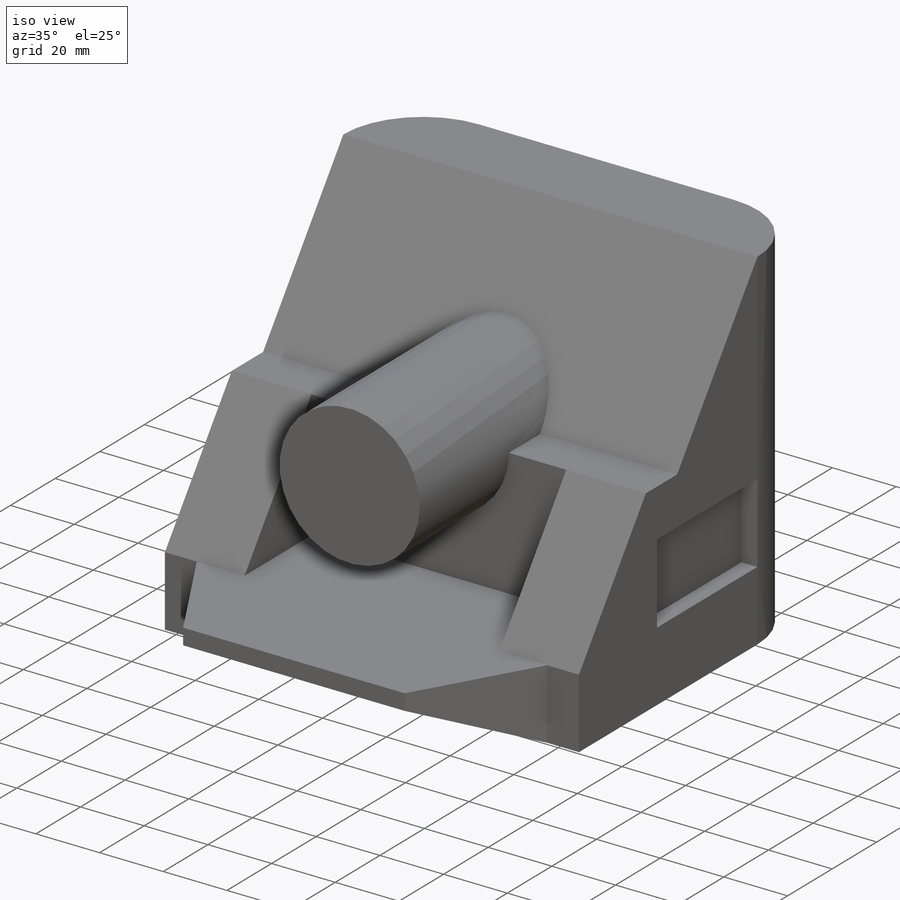
[diagram: iso view]
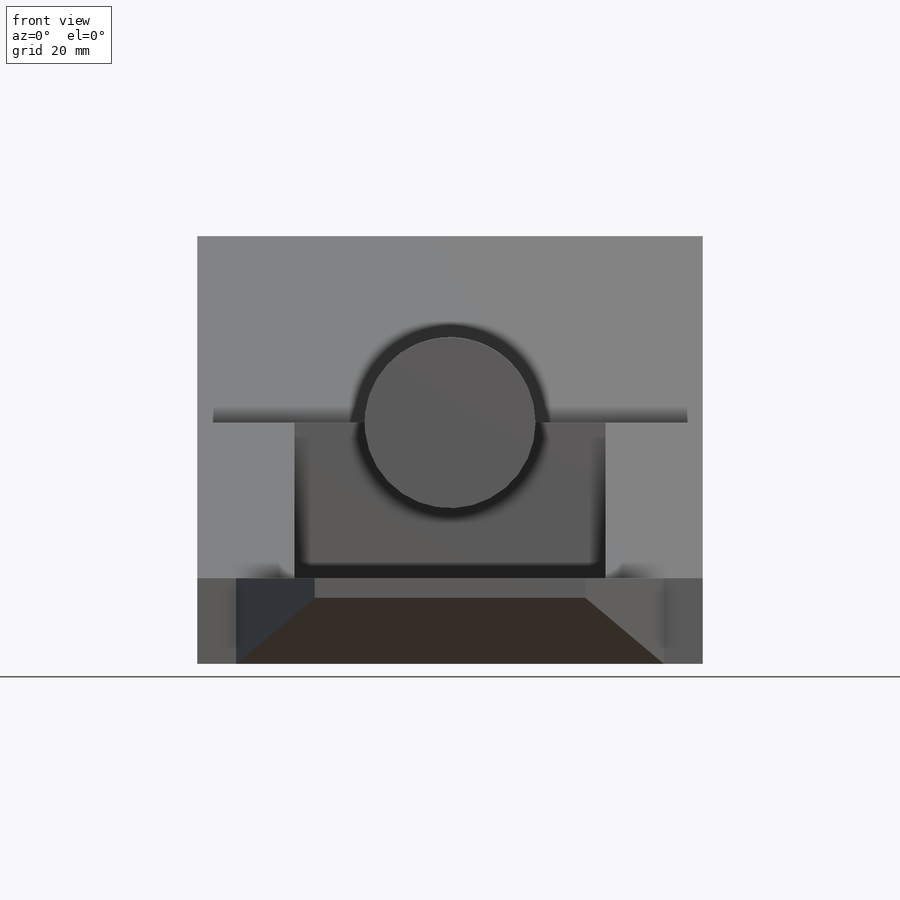
[diagram: front view]
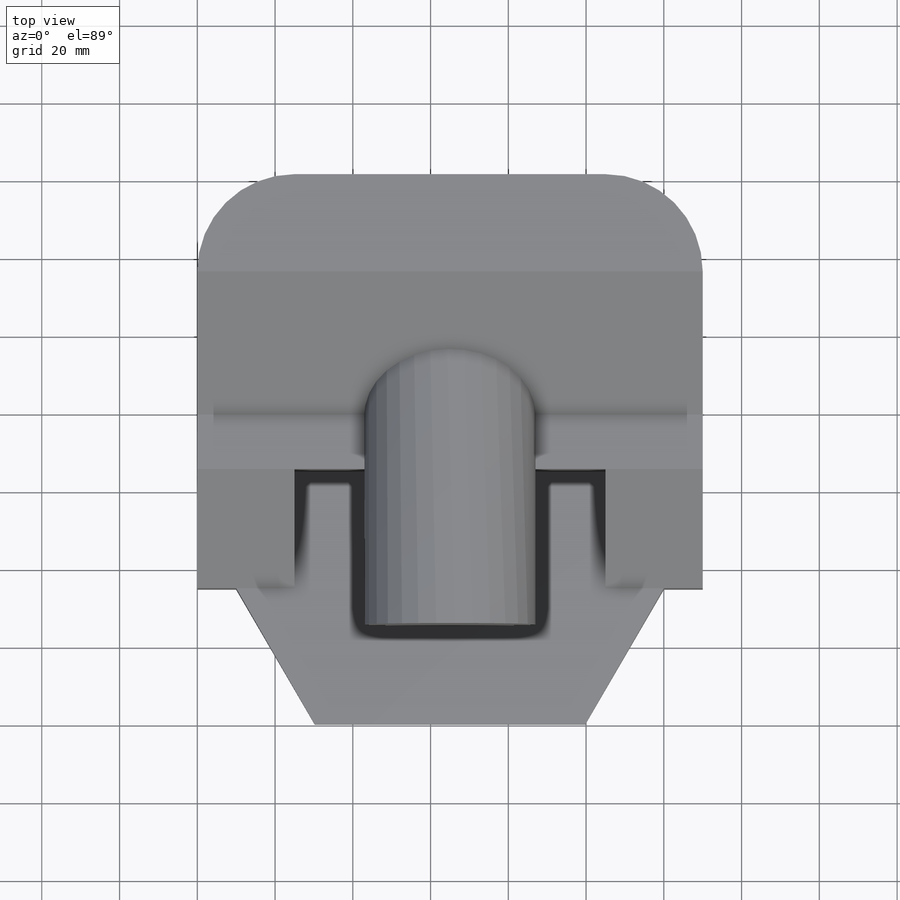
[diagram: top view]
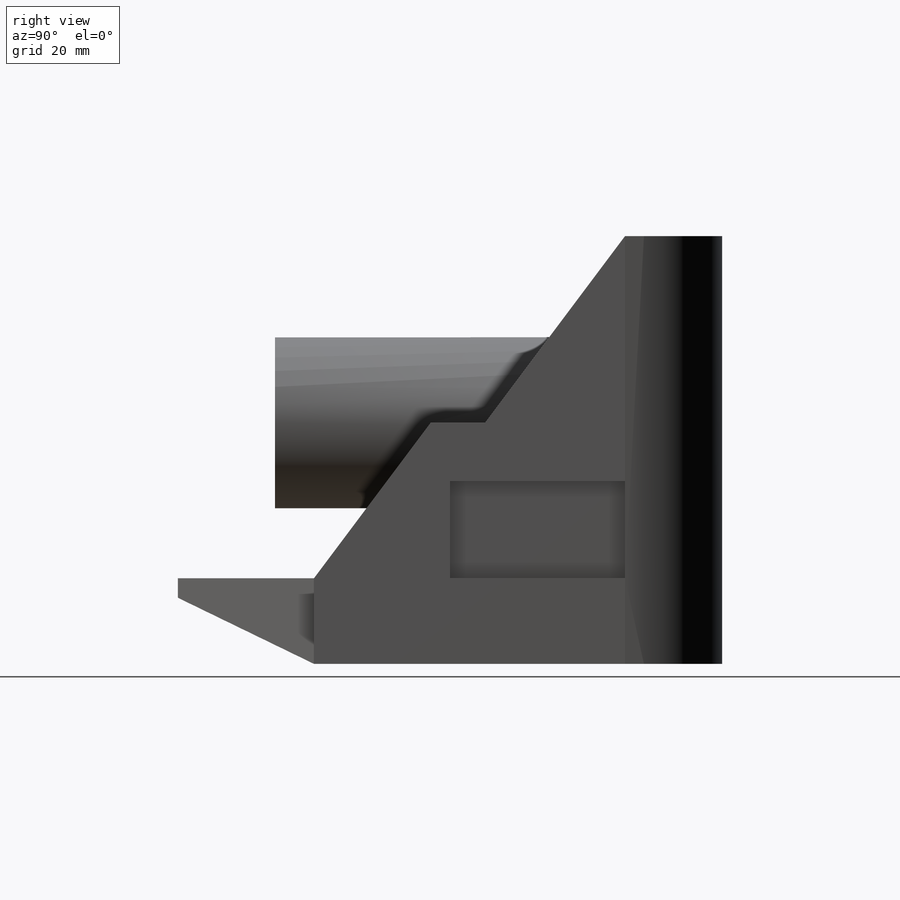
[diagram: right view]
SOLIDWORKS PART (.sldprt)
format: sldprt  version: not decoded by parser v0  size: 224,768 bytes
history: native  units: mm
features: sketch x5, cut_extrude x3, extrude x2, material x1, fillet x1 (+16 scaffold rows collapsed)
feature tree (28):
  scaffold x16  (default folders/planes/origin — collapsed)
  material  "Material <not specified>"
  sketch  "Sketch1"  dims[c1.D1=110.0mm c1.D2=22.0mm c1.D3=14.0mm c1.D4=35.0mm c1.D5=25.0mm c1.D6=30.0mm c1.D7=35.0mm c2.D2=5.0mm c2.D4=35.0mm c2.D7=35.0mm c2.D8=36.0mm c2.D9=22.0mm]
  extrude  "Extrude1"  Depth=130mm
  fillet  "Fillet1"  Radius=25mm
  sketch  "Sketch2"  dims[c1.D1=~39.135222mm c2.D1=60.0deg c2.D2=10.0mm]
  cut_extrude  "Extrude2"  Depth=130mm
  sketch  "Sketch3"  dims[D1=15.0mm D2=45.0mm D3=22.0mm]
  cut_extrude  "Extrude3"  Depth=5mm
  sketch  "Sketch4"  dims[D1=25.0mm D2=25.0mm]
  cut_extrude  "Extrude4"  [1 undecoded]
  sketch  "Sketch5"  dims[D1=44.0mm]
  extrude  "Extrude5"  Depth=40mm
decode coverage: 10 of 11 modeling features carry decoded parameters
note: ~ marks probable driven/reference dimensions
note: 1 parameter value undecoded
note: suppression state not decoded; provenance and decode notes live in map.json
